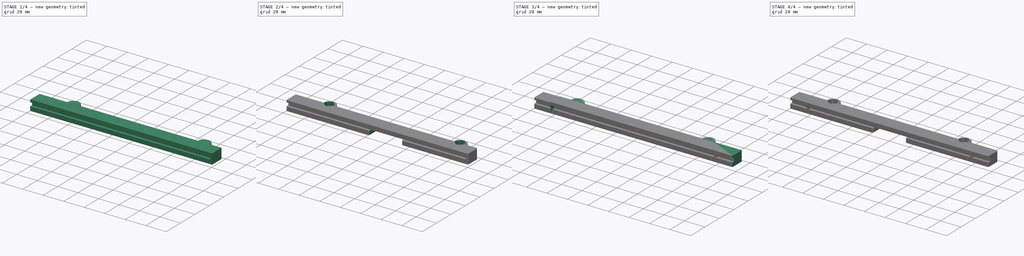
[diagram: build sequence overview — one tinted view per stage of 4, left to right]
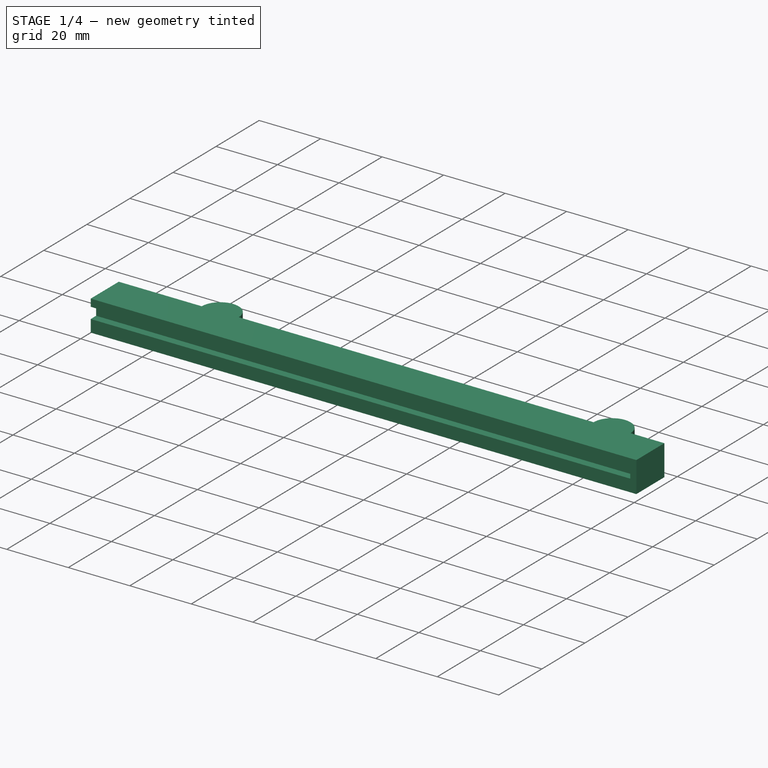
[diagram: stage 1 of 4 — iso view after this stage's code; geometry added in this stage tinted green]
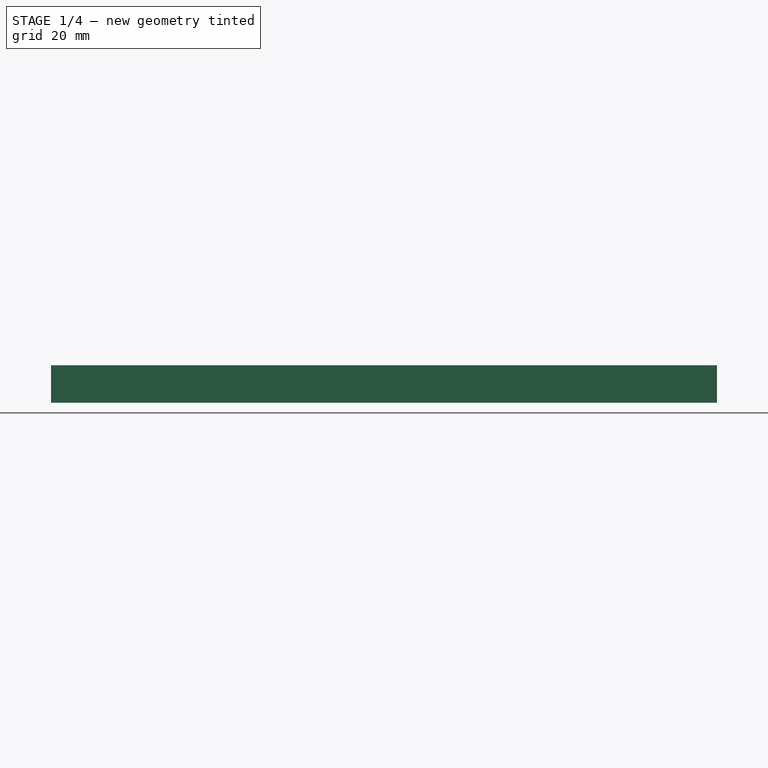
[diagram: stage 1 of 4 — front view after this stage's code; geometry added in this stage tinted green]
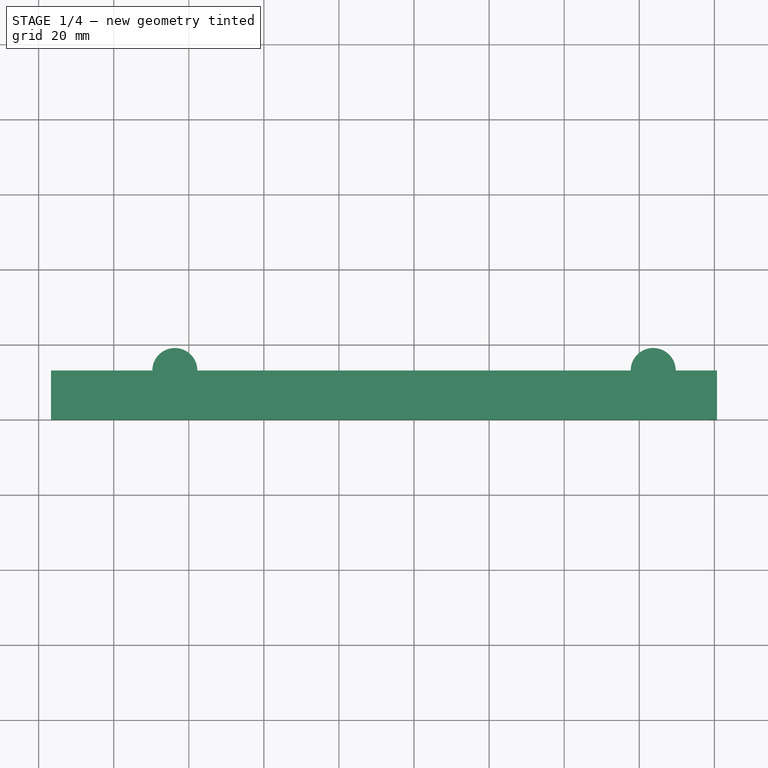
[diagram: stage 1 of 4 — top view after this stage's code; geometry added in this stage tinted green]
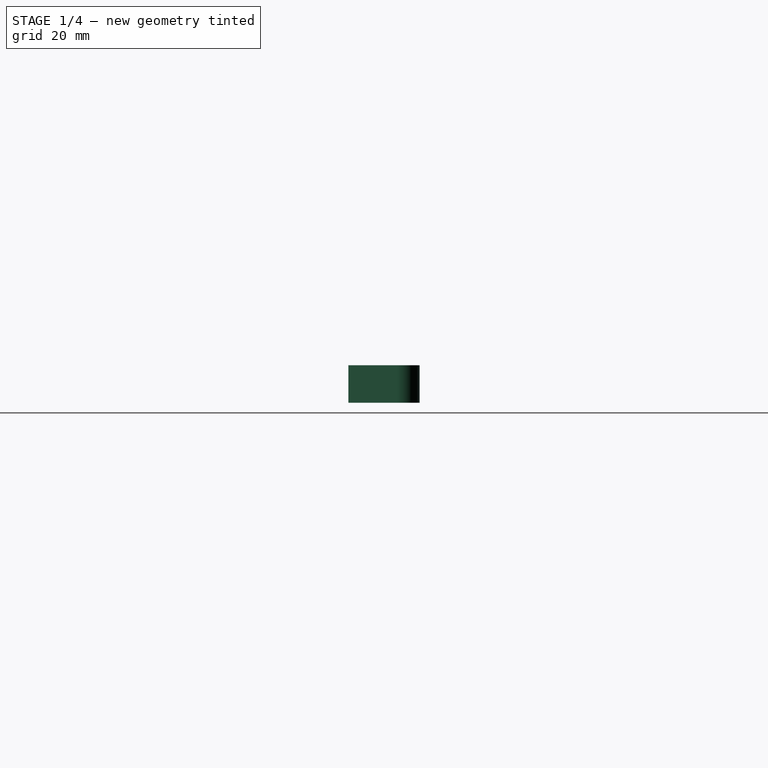
[diagram: stage 1 of 4 — right view after this stage's code; geometry added in this stage tinted green]
FCSTD DOCUMENT  (FreeCAD 1.1R38728 (Git))
Label: AuxPower1U PSRail
License: All rights reserved
LicenseURL: https://en.wikipedia.org/wiki/All_rights_reserved
objects: Sketcher::SketchObject×10, Part::Part2DObjectPython×10, PartDesign::Pocket×8, PartDesign::Pad×4, PartDesign::Chamfer×2, PartDesign::Body×2
note: 74 computed .brp shape members not serialized (recipe doc carries the construction recipe); baked Part::Feature solids carry a one-line shape summary decoded from their .brp

FEATURE [Part::Part2DObjectPython] Clone2D005  label="KeyedHoleRSketch"  # Draft 2D object (typed FeaturePython)
  Fuse = false
  Objects = -> [Sketch017]
  Scale = (1,1,1)
FEATURE [Part::Part2DObjectPython] Clone2D006  label="RoundHoleRSketch"  # Draft 2D object (typed FeaturePython)
  Fuse = false
  Objects = -> [Sketch020]
  Scale = (1,1,1)
FEATURE [Part::Part2DObjectPython] Clone2D007  label="BodyRSketch"  # Draft 2D object (typed FeaturePython)
  Fuse = false
  Objects = -> [Sketch021]
  Scale = (1,1,1)
FEATURE [Part::Part2DObjectPython] Clone2D008  label="StopRSketch"  # Draft 2D object (typed FeaturePython)
  Fuse = false
  Objects = -> [Sketch022]
  Scale = (1,1,1)
FEATURE [Part::Part2DObjectPython] Clone2D009  label="EdgeRSketch"  # Draft 2D object (typed FeaturePython)
  Fuse = false
  Objects = -> [Sketch024]
  Placement = pos=(0,0,0) rot=(1,0,0;1.5708rad)
  Scale = (1,1,1)
FEATURE [PartDesign::Pad] Pad002  label="BodyR"
  Direction = (0,0,1)
  Length = 10
  Length2 = 10
  Profile = -> Clone2D007
  ReferenceAxis = -> Clone2D007 [N_Axis]
  Refine = true
  Suppressed = false
  Type = 0
FEATURE [PartDesign::Pocket] Pocket003  label="EdgeR"
  BaseFeature = -> Pad002
  Direction = (0,1,2e-16)
  Length = 2.5
  Length2 = 5
  Profile = -> Clone2D009
  ReferenceAxis = -> Clone2D009 [N_Axis]
  Refine = true
  Suppressed = false
  Type = 0
FEATURE [PartDesign::Pad] Pad003  label="StopR"
  BaseFeature = -> Pocket003
  Direction = (0,0,1)
  Length = 10
  Length2 = 10
  Profile = -> Clone2D008
  ReferenceAxis = -> Clone2D008 [N_Axis]
  Refine = true
  Suppressed = false
  Type = 0
FEATURE [PartDesign::Pocket] Pocket004  label="RoundHoleR"
  BaseFeature = -> Pad003
  Direction = (0,0,-1)
  Length = 2
  Length2 = 5
  Profile = -> Clone2D006
  ReferenceAxis = -> Clone2D006 [N_Axis]
  Refine = true
  Reversed = true
  Suppressed = false
  Type = 0
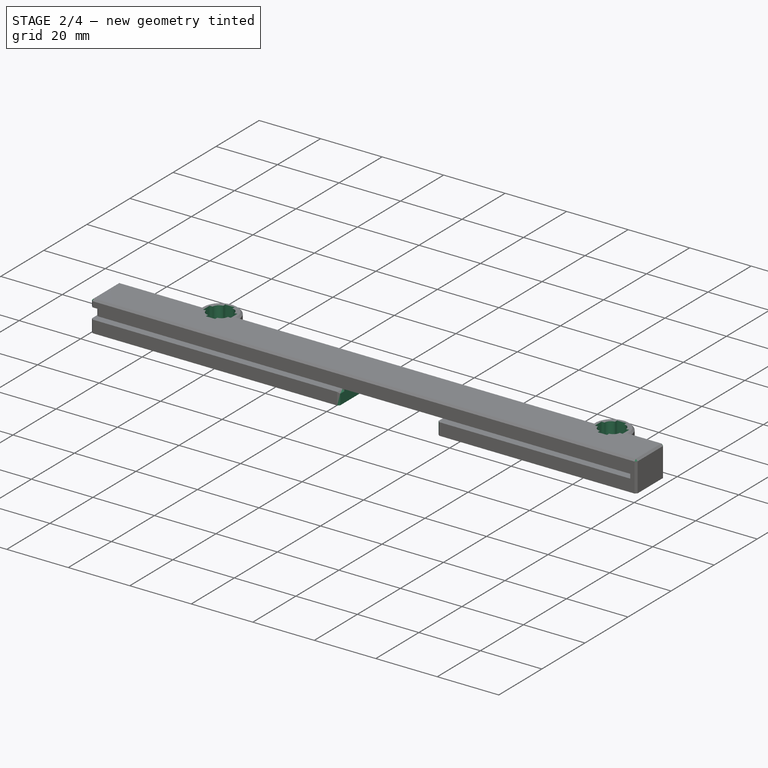
[diagram: stage 2 of 4 — iso view after this stage's code; geometry added in this stage tinted green]
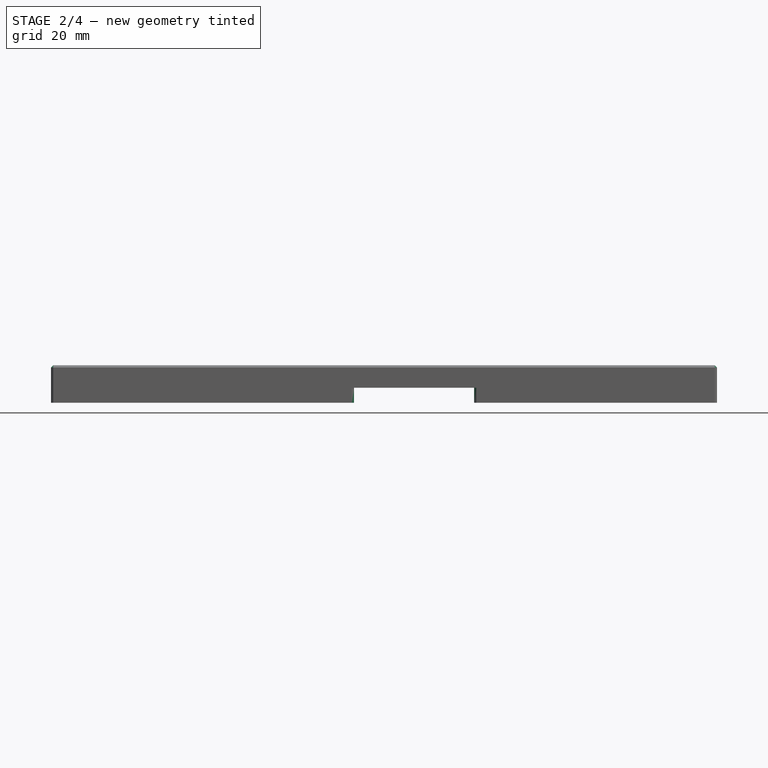
[diagram: stage 2 of 4 — front view after this stage's code; geometry added in this stage tinted green]
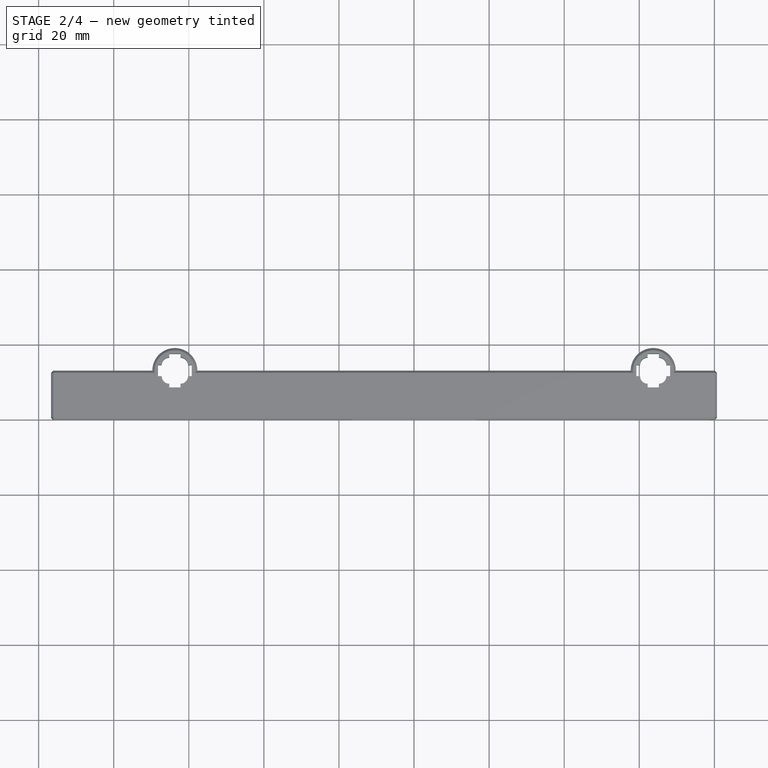
[diagram: stage 2 of 4 — top view after this stage's code; geometry added in this stage tinted green]
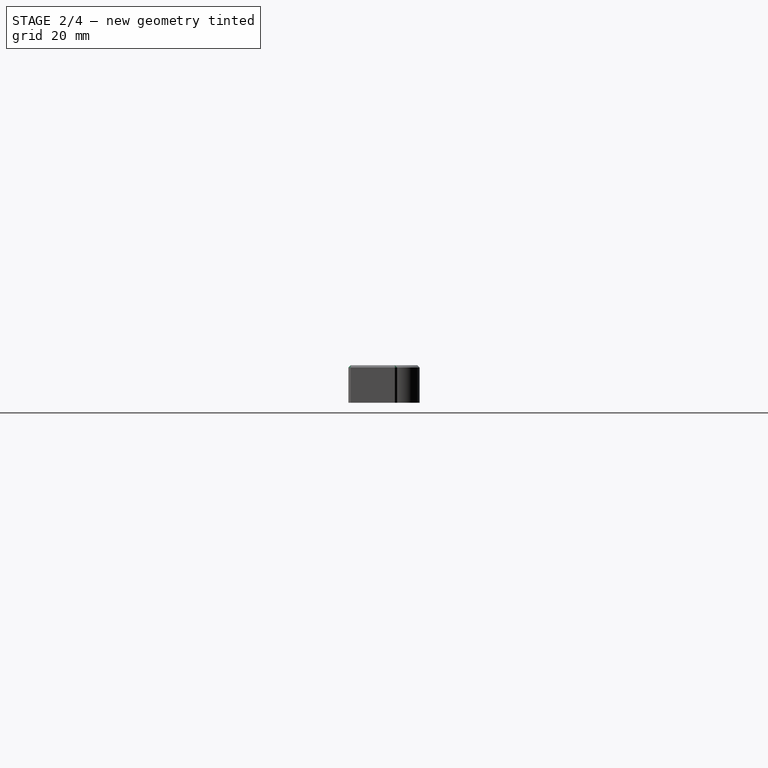
[diagram: stage 2 of 4 — right view after this stage's code; geometry added in this stage tinted green]
FEATURE [PartDesign::Pocket] Pocket005  label="KeyedHoleR"
  BaseFeature = -> Pocket004
  Direction = (0,0,-1)
  Length = 5
  Length2 = 5
  Profile = -> Clone2D005
  ReferenceAxis = -> Clone2D005 [N_Axis]
  Refine = true
  Reversed = true
  Suppressed = false
  Type = 1
FEATURE [PartDesign::Body] Body  label="RailL"
  AllowCompound = false
  Group = -> [Pad,Pocket,Pad001,Clone2D004,Clone2D003,Clone2D002,Clone2D001,Pocket001,Clone2D,Pocket002,Sketch025,Pocket006,Chamfer]
  Origin = -> Origin
  Placement = pos=(0,10,0) rot=(0,0,1;0rad)
  Tip = -> Chamfer
FEATURE [Sketcher::SketchObject] Sketch026  label="WirePassageRSketch"
  ArcFitTolerance = 1e-06
  AttachmentSupport = -> [XY_Plane001]
  ExternalGeometry = -> [Pocket005]
  FullyConstrained = true
  MakeInternals = false
  MapMode = 5
  sketch-geometry (6):
    g0: LineSegment StartX=-16 StartY=13 StartZ=0 EndX=-16 EndY=0 EndZ=0
    g1: LineSegment StartX=-16 StartY=0 StartZ=0 EndX=16 EndY=0 EndZ=0
    g2: LineSegment StartX=16 StartY=0 StartZ=0 EndX=16 EndY=13 EndZ=0
    g3: LineSegment StartX=16 StartY=13 StartZ=0 EndX=-16 EndY=13 EndZ=0
    g4: LineSegment [constr] StartX=-57.7159 StartY=13 StartZ=0 EndX=-16 EndY=13 EndZ=0
    g5: LineSegment [constr] StartX=16 StartY=13 StartZ=0 EndX=57.7159 EndY=13 EndZ=0
  constraints (16):
    c: Coincident(g0,g1)
    c: Coincident(g1,g2)
    c: Coincident(g2,g3)
    c: Coincident(g3,g0)
    c: Vertical(g0)
    c: Vertical(g2)
    c: Horizontal(g1)
    c: Horizontal(g3)
    c: Distance(g0,g2) = 32
    c: Coincident(g4,g-4)
    c: Coincident(g4,g0)
    c: Coincident(g5,g2)
    c: Coincident(g5,g-4)
    c: Equal(g4,g5)
    c: Horizontal(g0,g4)
    c: Horizontal(g0,g-3)
FEATURE [PartDesign::Pocket] Pocket007  label="WirePassagRPocket"
  BaseFeature = -> Pocket005
  Direction = (0,0,-1)
  Length = 4
  Length2 = 5
  Profile = -> Sketch026
  ReferenceAxis = -> Sketch026 [N_Axis]
  Refine = true
  Reversed = true
  Suppressed = false
  Type = 0
FEATURE [PartDesign::Chamfer] Chamfer001  label="ChamferR"
  Angle = 45
  Base = -> Pocket007 [Edge62,Edge57,Edge64,Edge56,Edge19,Edge21,Edge78,Edge80,Edge74,Edge77,Edge23,Edge22,Edge14,Edge20,Edge10,Edge9,Edge11,Edge4,Edge5,Edge6]
  BaseFeature = -> Pocket007
  ChamferType = 0
  FlipDirection = false
  Refine = true
  Size = 0.6
  Size2 = 1
  SupportTransform = false
  Suppressed = false
  UseAllEdges = false
FEATURE [PartDesign::Body] Body001  label="RailR"
  AllowCompound = false
  Group = -> [Clone2D007,Pad002,Clone2D009,Pocket003,Clone2D008,Pad003,Clone2D006,Pocket004,Clone2D005,Pocket005,Sketch026,Pocket007,Chamfer001]
  Origin = -> Origin001
  Placement = pos=(0,-10,0) rot=(0,0,1;3.14159rad)
  Tip = -> Chamfer001
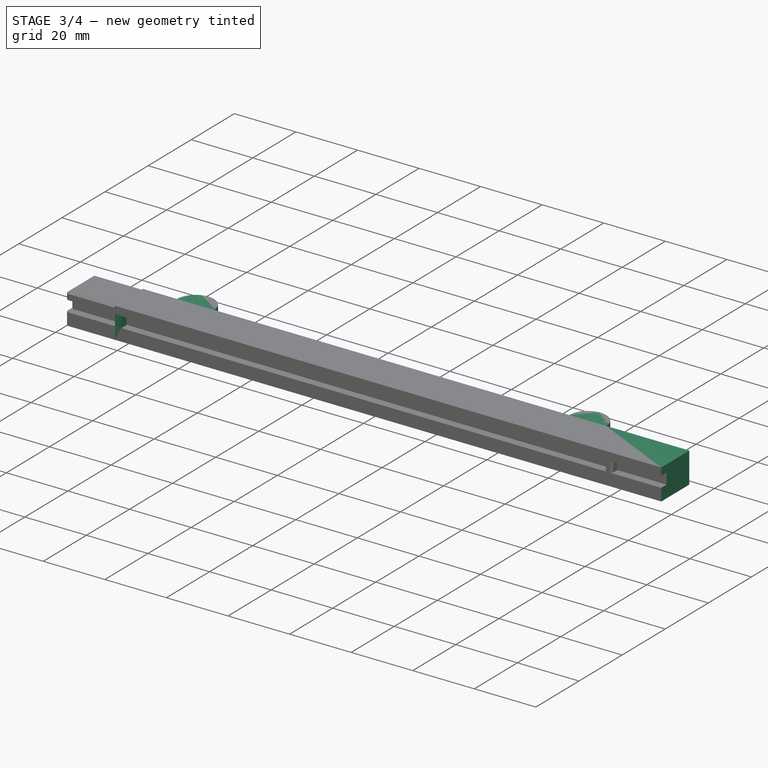
[diagram: stage 3 of 4 — iso view after this stage's code; geometry added in this stage tinted green]
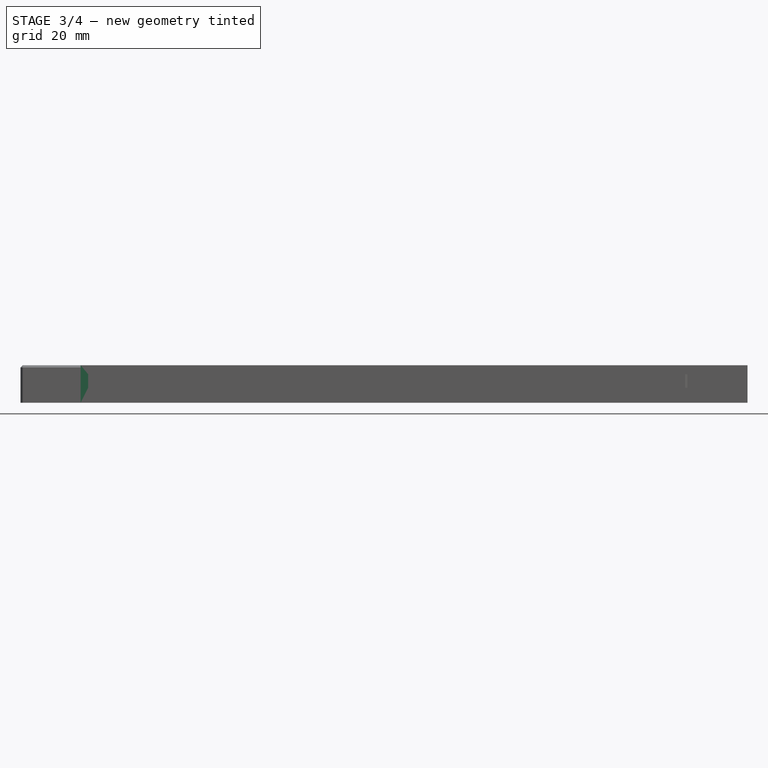
[diagram: stage 3 of 4 — front view after this stage's code; geometry added in this stage tinted green]
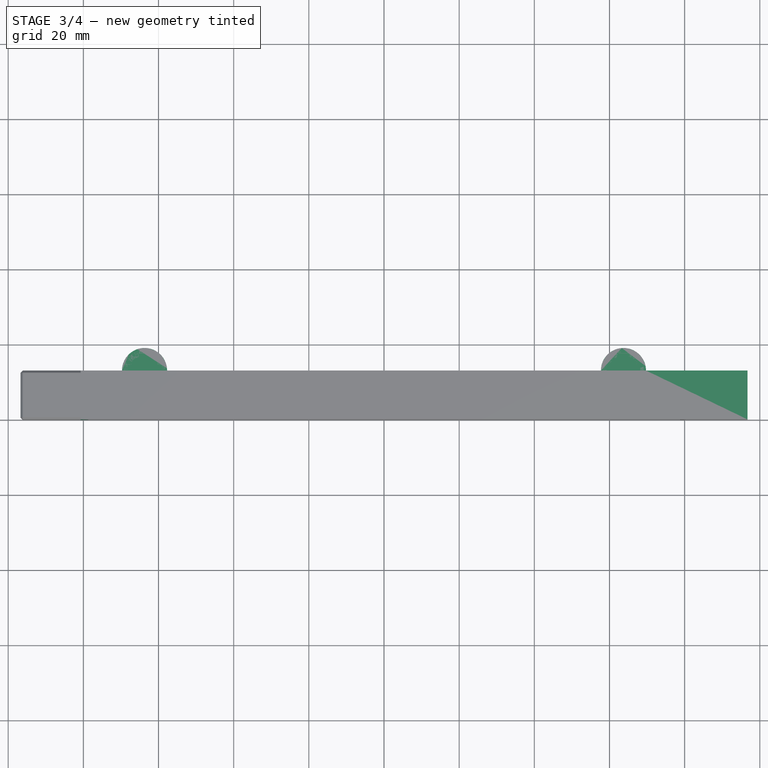
[diagram: stage 3 of 4 — top view after this stage's code; geometry added in this stage tinted green]
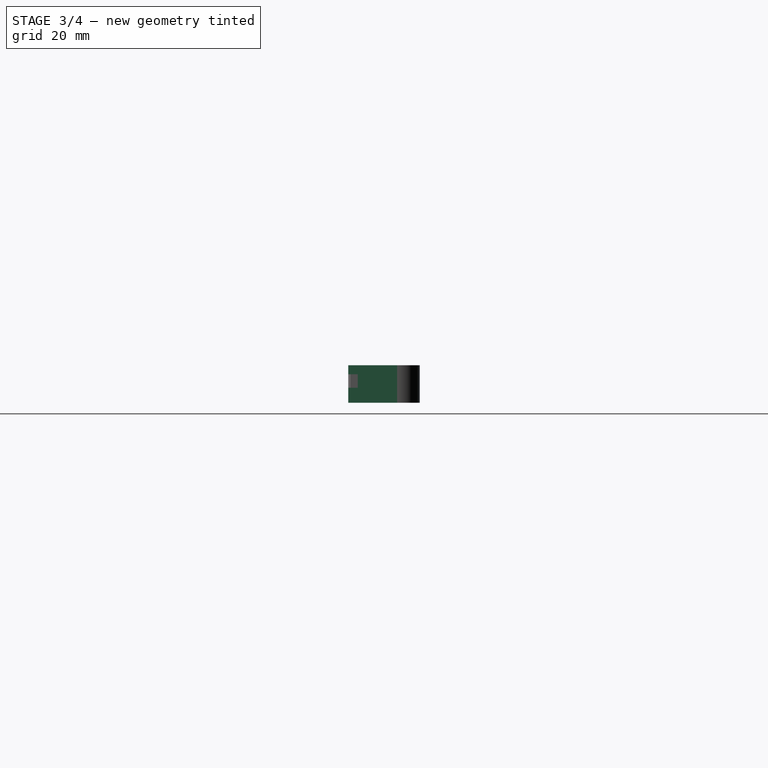
[diagram: stage 3 of 4 — right view after this stage's code; geometry added in this stage tinted green]
FEATURE [Sketcher::SketchObject] Sketch020  label="RoundHoleMasterSketch"
  ArcFitTolerance = 1e-06
  FullyConstrained = true
  MakeInternals = false
  MapMode = 5
  sketch-geometry (5):
    g0: LineSegment [constr] StartX=-63.7159 StartY=0 StartZ=0 EndX=-63.7159 EndY=13 EndZ=0
    g1: LineSegment [constr] StartX=-63.7159 StartY=0 StartZ=0 EndX=63.7159 EndY=0 EndZ=0
    g2: LineSegment [constr] StartX=63.7159 StartY=0 StartZ=0 EndX=63.7159 EndY=13 EndZ=0
    g3: Circle CenterX=-63.7159 CenterY=13 CenterZ=0 NormalX=0 NormalY=0 NormalZ=1 AngleXU=0 Radius=5
    g4: Circle CenterX=63.7159 CenterY=13 CenterZ=0 NormalX=0 NormalY=0 NormalZ=1 AngleXU=0 Radius=5
  constraints (13):
    c: Distance(g0) = 13
    c: Vertical(g0)
    c: Coincident(g1,g0)
    c: Horizontal(g1)
    c: DistanceX(g1,g1) = 127.432
    c: Symmetric(g1,g0,g-1)
    c: Coincident(g2,g1)
    c: Vertical(g2)
    c: Equal(g2,g0)
    c: Diameter(g3) = 10
    c: Coincident(g3,g0)
    c: Coincident(g4,g2)
    c: Equal(g4,g3)
FEATURE [Sketcher::SketchObject] Sketch017  label="KeyedHoleMasterSketch"
  ArcFitTolerance = 1e-06
  ExternalGeometry = -> [Sketch020]
  FullyConstrained = true
  MakeInternals = false
  MapMode = 2
  sketch-geometry (48):
    g0: LineSegment [constr] StartX=-63.7159 StartY=13 StartZ=0 EndX=-63.7159 EndY=17.5 EndZ=0
    g1: LineSegment [constr] StartX=-63.7159 StartY=13 StartZ=0 EndX=-68.2159 EndY=13 EndZ=0
    g2: LineSegment [constr] StartX=-63.7159 StartY=13 StartZ=0 EndX=-63.7159 EndY=8.5 EndZ=0
    g3: LineSegment [constr] StartX=-63.7159 StartY=13 StartZ=0 EndX=-59.2159 EndY=13 EndZ=0
    g4: LineSegment StartX=-68.2159 StartY=13 StartZ=0 EndX=-68.2159 EndY=14.5 EndZ=0
    g5: LineSegment StartX=-68.2159 StartY=13 StartZ=0 EndX=-68.2159 EndY=11.5 EndZ=0
    g6: LineSegment StartX=-59.2159 StartY=13 StartZ=0 EndX=-59.2159 EndY=11.5 EndZ=0
    g7: LineSegment StartX=-59.2159 StartY=13 StartZ=0 EndX=-59.2159 EndY=14.5 EndZ=0
    g8: LineSegment StartX=-63.7159 StartY=17.5 StartZ=0 EndX=-65.2159 EndY=17.5 EndZ=0
    g9: LineSegment StartX=-63.7159 StartY=17.5 StartZ=0 EndX=-62.2159 EndY=17.5 EndZ=0
    g10: LineSegment StartX=-65.2159 StartY=17.5 StartZ=0 EndX=-65.2159 EndY=16.5 EndZ=0
    g11: LineSegment StartX=-68.2159 StartY=14.5 StartZ=0 EndX=-67.2159 EndY=14.5 EndZ=0
    g12: LineSegment StartX=-68.2159 StartY=11.5 StartZ=0 EndX=-67.2159 EndY=11.5 EndZ=0
    g13: LineSegment StartX=-65.2159 StartY=8.5 StartZ=0 EndX=-65.2159 EndY=9.5 EndZ=0
    g14: LineSegment StartX=-62.2159 StartY=8.5 StartZ=0 EndX=-62.2159 EndY=9.5 EndZ=0
    g15: LineSegment StartX=-59.2159 StartY=11.5 StartZ=0 EndX=-60.2159 EndY=11.5 EndZ=0
    g16: LineSegment StartX=-59.2159 StartY=14.5 StartZ=0 EndX=-60.2159 EndY=14.5 EndZ=0
    g17: LineSegment StartX=-62.2159 StartY=17.5 StartZ=0 EndX=-62.2159 EndY=16.5 EndZ=0
    g18: ArcOfCircle CenterX=-65.2159 CenterY=14.5 CenterZ=0 NormalX=0 NormalY=0 NormalZ=1 AngleXU=0 Radius=2 StartAngle=1.5708 EndAngle=3.14159
    g19: ArcOfCircle CenterX=-62.2159 CenterY=14.5 CenterZ=0 NormalX=0 NormalY=0 NormalZ=1 AngleXU=0 Radius=2 StartAngle=-9e-16 EndAngle=1.5708
    g20: ArcOfCircle CenterX=-62.2159 CenterY=11.5 CenterZ=0 NormalX=0 NormalY=0 NormalZ=1 AngleXU=0 Radius=2 StartAngle=4.71239 EndAngle=6.28319
    g21: ArcOfCircle CenterX=-65.2159 CenterY=11.5 CenterZ=0 NormalX=0 NormalY=0 NormalZ=1 AngleXU=0 Radius=2 StartAngle=3.14159 EndAngle=4.71239
    g22: LineSegment [constr] StartX=63.7159 StartY=13 StartZ=0 EndX=59.2159 EndY=13 EndZ=0
    g23: LineSegment [constr] StartX=63.7159 StartY=13 StartZ=0 EndX=68.2159 EndY=13 EndZ=0
    g24: LineSegment [constr] StartX=63.7159 StartY=13 StartZ=0 EndX=63.7159 EndY=17.5 EndZ=0
    g25: LineSegment [constr] StartX=63.7159 StartY=13 StartZ=0 EndX=63.7159 EndY=8.5 EndZ=0
    g26: LineSegment StartX=-63.7159 StartY=8.5 StartZ=0 EndX=-65.2159 EndY=8.5 EndZ=0
    g27: LineSegment StartX=-63.7159 StartY=8.5 StartZ=0 EndX=-62.2159 EndY=8.5 EndZ=0
    g28: LineSegment StartX=63.7159 StartY=17.5 StartZ=0 EndX=62.2159 EndY=17.5 EndZ=0
    g29: LineSegment StartX=62.2159 StartY=17.5 StartZ=0 EndX=62.2159 EndY=16.5 EndZ=0
    g30: LineSegment StartX=63.7159 StartY=17.5 StartZ=0 EndX=65.2159 EndY=17.5 EndZ=0
    g31: LineSegment StartX=68.2159 StartY=13 StartZ=0 EndX=68.2159 EndY=14.5 EndZ=0
    g32: LineSegment StartX=68.2159 StartY=13 StartZ=0 EndX=68.2159 EndY=11.5 EndZ=0
    g33: LineSegment StartX=63.7159 StartY=8.5 StartZ=0 EndX=65.2159 EndY=8.5 EndZ=0
    g34: LineSegment StartX=63.7159 StartY=8.5 StartZ=0 EndX=62.2159 EndY=8.5 EndZ=0
    g35: LineSegment StartX=59.2159 StartY=13 StartZ=0 EndX=59.2159 EndY=11.5 EndZ=0
    g36: LineSegment StartX=59.2159 StartY=13 StartZ=0 EndX=59.2159 EndY=14.5 EndZ=0
    g37: LineSegment StartX=59.2159 StartY=14.5 StartZ=0 EndX=60.2159 EndY=14.5 EndZ=0
    g38: LineSegment StartX=59.2159 StartY=11.5 StartZ=0 EndX=60.2159 EndY=11.5 EndZ=0
    g39: LineSegment StartX=62.2159 StartY=8.5 StartZ=0 EndX=62.2159 EndY=9.5 EndZ=0
    g40: LineSegment StartX=65.2159 StartY=8.5 StartZ=0 EndX=65.2159 EndY=9.5 EndZ=0
    g41: LineSegment StartX=68.2159 StartY=11.5 StartZ=0 EndX=67.2159 EndY=11.5 EndZ=0
    g42: LineSegment StartX=68.2159 StartY=14.5 StartZ=0 EndX=67.2159 EndY=14.5 EndZ=0
    g43: LineSegment StartX=65.2159 StartY=17.5 StartZ=0 EndX=65.2159 EndY=16.5 EndZ=0
    g44: ArcOfCircle CenterX=62.2159 CenterY=14.5 CenterZ=0 NormalX=0 NormalY=0 NormalZ=1 AngleXU=0 Radius=2 StartAngle=1.5708 EndAngle=3.14159
    g45: ArcOfCircle CenterX=65.2159 CenterY=14.5 CenterZ=0 NormalX=0 NormalY=0 NormalZ=1 AngleXU=0 Radius=2 StartAngle=0 EndAngle=1.5708
    g46: ArcOfCircle CenterX=65.2159 CenterY=11.5 CenterZ=0 NormalX=0 NormalY=0 NormalZ=1 AngleXU=0 Radius=2 StartAngle=4.71239 EndAngle=6.28319
    g47: ArcOfCircle CenterX=62.2159 CenterY=11.5 CenterZ=0 NormalX=0 NormalY=0 NormalZ=1 AngleXU=0 Radius=2 StartAngle=3.14159 EndAngle=4.71239
  constraints (145):
    c: Horizontal(g3)
    c: Vertical(g0)
    c: Vertical(g2)
    c: Coincident(g1,g0)
    c: Coincident(g2,g0)
    c: Coincident(g0,g3)
    c: DistanceX(g1,g1) = 4.5  'Radius'
    c: Distance(g4) = 1.5
    c: Coincident(g4,g1)
    c: Vertical(g4)
    c: Coincident(g5,g1)
    c: Vertical(g5)
    c: Equal(g0,g1)
    c: Equal(g3,g0)
    c: Equal(g2,g3)
    c: Equal(g5,g4)
    c: Coincident(g6,g3)
    c: Vertical(g6)
    c: Equal(g6,g4)
    c: Coincident(g7,g3)
    c: Vertical(g7)
    c: Equal(g7,g6)
    c: Coincident(g8,g0)
    c: Horizontal(g8)
    c: Equal(g8,g4)
    c: Coincident(g9,g0)
    c: Horizontal(g9)
    c: Equal(g8,g9)
    c: Distance(g10) = 1
    c: Coincident(g10,g8)
    c: Vertical(g10)
    c: Coincident(g11,g4)
    c: Horizontal(g11)
    c: Coincident(g12,g5)
    c: Horizontal(g12)
    c: Vertical(g13)
    c: Vertical(g14)
    c: Coincident(g15,g6)
    c: Horizontal(g15)
    c: Coincident(g16,g7)
    c: Horizontal(g16)
    c: Coincident(g17,g9)
    c: Vertical(g17)
    c: Equal(g10,g17)
    c: Equal(g16,g17)
    c: Equal(g16,g15)
    c: Equal(g14,g15)
    c: Equal(g14,g13)
    c: Equal(g13,g12)
    c: Equal(g11,g12)
    c: Coincident(g19,g17)
    c: Coincident(g19,g16)
    c: Coincident(g18,g10)
    c: Coincident(g18,g11)
    c: Coincident(g20,g15)
    c: Coincident(g20,g14)
    c: Coincident(g21,g12)
    c: Coincident(g21,g13)
    c: Horizontal(g22)
    c: Horizontal(g23)
    c: Vertical(g24)
    c: Equal(g25,g23)
    c: Equal(g23,g22)
    c: Equal(g22,g24)
    c: Equal(g24,g3)
    c: Coincident(g0,g-3)
    c: Coincident(g22,g24)
    c: Coincident(g22,g23)
    c: Coincident(g22,g25)
    c: Vertical(g25)
    c: Coincident(g22,g-4)
    c: Coincident(g26,g2)
    c: Horizontal(g26)
    c: Coincident(g27,g2)
    c: Horizontal(g27)
    c: Equal(g27,g26)
    c: Equal(g26,g4)
    c: Vertical(g26,g13)
    c: Coincident(g14,g27)
    c: Vertical(g18,g10)
    c: Vertical(g21,g18)
    c: Vertical(g20,g14)
    c: Vertical(g19,g20)
    c: Horizontal(g12,g21)
    c: Horizontal(g1)
    c: Distance(g28) = 1.5
    c: Coincident(g28,g24)
    c: Horizontal(g28)
    c: Coincident(g29,g28)
    c: Vertical(g29)
    c: DistanceY(g29,g29) = 1
    c: Coincident(g30,g24)
    c: Horizontal(g30)
    c: Coincident(g31,g23)
    c: Vertical(g31)
    c: Coincident(g32,g23)
    c: Vertical(g32)
    c: Coincident(g33,g25)
    c: Horizontal(g33)
    c: Coincident(g34,g25)
    c: Horizontal(g34)
    c: Coincident(g35,g22)
    c: Vertical(g35)
    c: Coincident(g36,g22)
    c: Vertical(g36)
    c: Equal(g36,g35)
    c: Equal(g35,g34)
    c: Equal(g34,g33)
    c: Equal(g33,g32)
    c: Equal(g32,g31)
    c: Equal(g31,g30)
    c: Equal(g30,g28)
    c: Coincident(g37,g36)
    c: Horizontal(g37)
    c: Coincident(g38,g35)
    c: Horizontal(g38)
    c: Coincident(g39,g34)
    c: Vertical(g39)
    c: Coincident(g40,g33)
    c: Vertical(g40)
    c: Coincident(g41,g32)
    c: Horizontal(g41)
    c: Coincident(g42,g31)
    c: Horizontal(g42)
    c: Coincident(g43,g30)
    c: Vertical(g43)
    c: Equal(g43,g42)
    c: Equal(g42,g41)
    c: Equal(g41,g38)
    c: Equal(g38,g37)
    c: Equal(g37,g29)
    c: Equal(g29,g40)
    c: Equal(g40,g39)
    c: Coincident(g44,g37)
    c: Coincident(g44,g29)
    c: Coincident(g45,g43)
    c: Coincident(g45,g42)
    c: Coincident(g46,g41)
    c: Coincident(g46,g40)
    c: Coincident(g47,g38)
    c: Coincident(g47,g39)
    c: Horizontal(g47,g38)
    c: Horizontal(g46,g41)
    c: Horizontal(g45,g42)
    c: Horizontal(g44,g37)
FEATURE [Sketcher::SketchObject] Sketch016  label="BodyLMasterSketch"
  ArcFitTolerance = 1e-06
  ExternalGeometry = -> [Sketch020]
  FullyConstrained = true
  MakeInternals = false
  MapMode = 5
  sketch-geometry (10):
    g0: LineSegment [constr] StartX=-69.7159 StartY=13 StartZ=0 EndX=-57.7159 EndY=13 EndZ=0
    g1: ArcOfCircle CenterX=-63.7159 CenterY=13 CenterZ=0 NormalX=0 NormalY=0 NormalZ=1 AngleXU=0 Radius=6 StartAngle=0 EndAngle=3.14159
    g2: LineSegment StartX=-69.7159 StartY=13 StartZ=0 EndX=-78.7159 EndY=13 EndZ=0
    g3: LineSegment StartX=-78.7159 StartY=13 StartZ=0 EndX=-78.7159 EndY=0 EndZ=0
    g4: LineSegment [constr] StartX=57.7159 StartY=13 StartZ=0 EndX=69.7159 EndY=13 EndZ=0
    g5: ArcOfCircle CenterX=63.7159 CenterY=13 CenterZ=0 NormalX=0 NormalY=0 NormalZ=1 AngleXU=0 Radius=6 StartAngle=7e-16 EndAngle=3.14159
    g6: LineSegment StartX=69.7159 StartY=13 StartZ=0 EndX=96.7159 EndY=13 EndZ=0
    g7: LineSegment StartX=96.7159 StartY=13 StartZ=0 EndX=96.7159 EndY=0 EndZ=0
    g8: LineSegment StartX=57.7159 StartY=13 StartZ=0 EndX=-57.7159 EndY=13 EndZ=0
    g9: LineSegment StartX=-78.7159 StartY=0 StartZ=0 EndX=96.7159 EndY=0 EndZ=0
  constraints (28):
    c: Horizontal(g0)
    c: Symmetric(g0,g0,g-3)
    c: DistanceX(g0,g0) = 12
    c: Coincident(g0,g1)
    c: Coincident(g1,g0)
    c: Horizontal(g-3,g1)
    c: Distance(g2) = 9
    c: Coincident(g2,g0)
    c: Horizontal(g2)
    c: Coincident(g3,g2)
    c: PointOnObject(g3,g-1)
    c: Vertical(g3)
    c: Horizontal(g4)
    c: Symmetric(g4,g4,g-4)
    c: DistanceX(g4,g4) = 12
    c: Coincident(g5,g-4)
    c: Coincident(g4,g5)
    c: Vertical(g5,g4)
    c: Distance(g6) = 27
    c: Coincident(g6,g4)
    c: Horizontal(g6)
    c: Coincident(g7,g6)
    c: PointOnObject(g7,g-1)
    c: Vertical(g7)
    c: Coincident(g8,g5)
    c: Coincident(g8,g0)
    c: Coincident(g9,g3)
    c: Coincident(g9,g7)
FEATURE [Sketcher::SketchObject] Sketch  label="StopLMasterSketch"
  ArcFitTolerance = 1e-06
  ExternalGeometry = -> [Sketch016]
  FullyConstrained = true
  MakeInternals = false
  MapMode = 5
  sketch-geometry (4):
    g0: LineSegment StartX=-78.7159 StartY=0 StartZ=0 EndX=-78.7159 EndY=13 EndZ=0
    g1: LineSegment StartX=-78.7159 StartY=13 StartZ=0 EndX=-80.7159 EndY=13 EndZ=0
    g2: LineSegment StartX=-80.7159 StartY=13 StartZ=0 EndX=-80.7159 EndY=0 EndZ=0
    g3: LineSegment StartX=-80.7159 StartY=0 StartZ=0 EndX=-78.7159 EndY=0 EndZ=0
  constraints (11):
    c: Coincident(g0,g1)
    c: Coincident(g1,g2)
    c: Coincident(g2,g3)
    c: Coincident(g3,g0)
    c: Vertical(g0)
    c: Vertical(g2)
    c: Horizontal(g1)
    c: Horizontal(g3)
    c: Distance(g0,g2) = 2
    c: Coincident(g0,g-3)
    c: Horizontal(g-3,g1)
FEATURE [Sketcher::SketchObject] Sketch021  label="BodyRMasterSketch"
  ArcFitTolerance = 1e-06
  ExternalGeometry = -> [Sketch020]
  FullyConstrained = true
  MakeInternals = false
  MapMode = 5
  sketch-geometry (10):
    g0: LineSegment [constr] StartX=57.7159 StartY=13 StartZ=0 EndX=69.7159 EndY=13 EndZ=0
    g1: LineSegment [constr] StartX=-69.7159 StartY=13 StartZ=0 EndX=-57.7159 EndY=13 EndZ=0
    g2: LineSegment StartX=-69.7159 StartY=13 StartZ=0 EndX=-96.7159 EndY=13 EndZ=0
    g3: LineSegment StartX=-96.7159 StartY=13 StartZ=0 EndX=-96.7159 EndY=0 EndZ=0
    g4: LineSegment StartX=57.7159 StartY=13 StartZ=0 EndX=-57.7159 EndY=13 EndZ=0
    g5: LineSegment StartX=69.7159 StartY=13 StartZ=0 EndX=78.7159 EndY=13 EndZ=0
    g6: LineSegment StartX=78.7159 StartY=13 StartZ=0 EndX=78.7159 EndY=0 EndZ=0
    g7: LineSegment StartX=78.7159 StartY=0 StartZ=0 EndX=-96.7159 EndY=0 EndZ=0
    g8: ArcOfCircle CenterX=-63.7159 CenterY=13 CenterZ=0 NormalX=0 NormalY=0 NormalZ=1 AngleXU=0 Radius=6 StartAngle=0 EndAngle=3.14159
    g9: ArcOfCircle CenterX=63.7159 CenterY=13 CenterZ=0 NormalX=0 NormalY=0 NormalZ=1 AngleXU=0 Radius=6 StartAngle=-6.457e-13 EndAngle=3.14159
  constraints (28):
    c: Horizontal(g0)
    c: Symmetric(g0,g0,g-4)
    c: DistanceX(g0,g0) = 12
    c: Horizontal(g1)
    c: DistanceX(g1,g1) = 12
    c: Symmetric(g1,g1,g-3)
    c: Distance(g2) = 27
    c: Coincident(g2,g1)
    c: Horizontal(g2)
    c: Coincident(g3,g2)
    c: PointOnObject(g3,g-1)
    c: Vertical(g3)
    c: Coincident(g4,g0)
    c: Coincident(g4,g1)
    c: Distance(g5) = 9
    c: Coincident(g5,g0)
    c: Horizontal(g5)
    c: Coincident(g6,g5)
    c: PointOnObject(g6,g-1)
    c: Vertical(g6)
    c: Coincident(g7,g6)
    c: Coincident(g7,g3)
    c: Coincident(g1,g8)
    c: Coincident(g1,g8)
    c: Horizontal(g8,g-3)
    c: Coincident(g9,g0)
    c: Coincident(g0,g9)
    c: Horizontal(g9,g-4)
FEATURE [Sketcher::SketchObject] Sketch022  label="StopRMasterSketch"
  ArcFitTolerance = 1e-06
  ExternalGeometry = -> [Sketch021]
  FullyConstrained = true
  MakeInternals = false
  MapMode = 5
  sketch-geometry (4):
    g0: LineSegment StartX=78.7159 StartY=0 StartZ=0 EndX=80.7159 EndY=0 EndZ=0
    g1: LineSegment StartX=80.7159 StartY=0 StartZ=0 EndX=80.7159 EndY=13 EndZ=0
    g2: LineSegment StartX=80.7159 StartY=13 StartZ=0 EndX=78.7159 EndY=13 EndZ=0
    g3: LineSegment StartX=78.7159 StartY=13 StartZ=0 EndX=78.7159 EndY=0 EndZ=0
  constraints (11):
    c: Coincident(g0,g1)
    c: Coincident(g1,g2)
    c: Coincident(g2,g3)
    c: Coincident(g3,g0)
    c: Horizontal(g0)
    c: Horizontal(g2)
    c: Vertical(g1)
    c: Vertical(g3)
    c: Distance(g1,g3) = 2
    c: Coincident(g0,g-3)
    c: Horizontal(g1,g-3)
FEATURE [Sketcher::SketchObject] Sketch023  label="EdgeLMasterSketch"
  ArcFitTolerance = 1e-06
  ExternalGeometry = -> [Sketch016]
  FullyConstrained = true
  MakeInternals = false
  Placement = pos=(0,0,0) rot=(1,0,0;1.5708rad)
  sketch-geometry (6):
    g0: LineSegment [constr] StartX=-78.7159 StartY=0 StartZ=0 EndX=-78.7159 EndY=4 EndZ=0
    g1: LineSegment [constr] StartX=96.7159 StartY=0 StartZ=0 EndX=96.7159 EndY=4 EndZ=0
    g2: LineSegment StartX=-78.7159 StartY=4 StartZ=0 EndX=96.7159 EndY=4 EndZ=0
    g3: LineSegment StartX=96.7159 StartY=4 StartZ=0 EndX=96.7159 EndY=7.6 EndZ=0
    g4: LineSegment StartX=96.7159 StartY=7.6 StartZ=0 EndX=-78.7159 EndY=7.6 EndZ=0
    g5: LineSegment StartX=-78.7159 StartY=7.6 StartZ=0 EndX=-78.7159 EndY=4 EndZ=0
  constraints (17):
    c: Distance(g0) = 4
    c: Coincident(g0,g-3)
    c: Vertical(g0)
    c: Coincident(g1,g-3)
    c: Vertical(g1)
    c: Equal(g1,g0)
    c: Coincident(g2,g3)
    c: Coincident(g3,g4)
    c: Coincident(g4,g5)
    c: Coincident(g5,g2)
    c: Horizontal(g2)
    c: Horizontal(g4)
    c: Vertical(g3)
    c: Vertical(g5)
    c: Coincident(g2,g0)
    c: DistanceY(g5,g5) = 3.6
    c: Vertical(g3,g1)
FEATURE [Sketcher::SketchObject] Sketch024  label="EdgeRMasterSketch"
  ArcFitTolerance = 1e-06
  ExternalGeometry = -> [Sketch021]
  FullyConstrained = true
  MakeInternals = false
  Placement = pos=(0,0,0) rot=(1,0,0;1.5708rad)
  sketch-geometry (6):
    g0: LineSegment [constr] StartX=-96.7159 StartY=0 StartZ=0 EndX=-96.7159 EndY=4 EndZ=0
    g1: LineSegment [constr] StartX=78.7159 StartY=0 StartZ=0 EndX=78.7159 EndY=4 EndZ=0
    g2: LineSegment StartX=-96.7159 StartY=4 StartZ=0 EndX=78.7159 EndY=4 EndZ=0
    g3: LineSegment StartX=78.7159 StartY=4 StartZ=0 EndX=78.7159 EndY=7.6 EndZ=0
    g4: LineSegment StartX=78.7159 StartY=7.6 StartZ=0 EndX=-96.7159 EndY=7.6 EndZ=0
    g5: LineSegment StartX=-96.7159 StartY=7.6 StartZ=0 EndX=-96.7159 EndY=4 EndZ=0
  constraints (17):
    c: Distance(g0) = 4
    c: Coincident(g0,g-3)
    c: Vertical(g0)
    c: Coincident(g1,g-3)
    c: Vertical(g1)
    c: Equal(g1,g0)
    c: Coincident(g2,g3)
    c: Coincident(g3,g4)
    c: Coincident(g4,g5)
    c: Coincident(g5,g2)
    c: Horizontal(g2)
    c: Horizontal(g4)
    c: Vertical(g3)
    c: Vertical(g5)
    c: Coincident(g2,g0)
    c: Vertical(g3,g1)
    c: DistanceY(g5,g5) = 3.6
FEATURE [Part::Part2DObjectPython] Clone2D001  label="RoundHoleLSketch"  # Draft 2D object (typed FeaturePython)
  Fuse = false
  Objects = -> [Sketch020]
  Scale = (1,1,1)
FEATURE [Part::Part2DObjectPython] Clone2D002  label="BodyLSketch"  # Draft 2D object (typed FeaturePython)
  Fuse = false
  Objects = -> [Sketch016]
  Scale = (1,1,1)
FEATURE [Part::Part2DObjectPython] Clone2D003  label="StopLSketch"  # Draft 2D object (typed FeaturePython)
  Fuse = false
  Objects = -> [Sketch]
  Scale = (1,1,1)
FEATURE [Part::Part2DObjectPython] Clone2D004  label="EdgeLSketch"  # Draft 2D object (typed FeaturePython)
  Fuse = false
  Objects = -> [Sketch023]
  Placement = pos=(0,0,0) rot=(1,0,0;1.5708rad)
  Scale = (1,1,1)
FEATURE [PartDesign::Pad] Pad  label="BodyL"
  Direction = (0,0,1)
  Length = 10
  Length2 = 10
  Profile = -> Clone2D002
  ReferenceAxis = -> Clone2D002 [N_Axis]
  Refine = true
  Suppressed = false
  Type = 0
FEATURE [PartDesign::Pocket] Pocket  label="EdgeL"
  BaseFeature = -> Pad
  Direction = (0,1,2e-16)
  Length = 2.5
  Length2 = 5
  Profile = -> Clone2D004
  ReferenceAxis = -> Clone2D004 [N_Axis]
  Refine = true
  Suppressed = false
  Type = 0
FEATURE [PartDesign::Pad] Pad001  label="StopL"
  BaseFeature = -> Pocket
  Direction = (0,0,1)
  Length = 10
  Length2 = 10
  Profile = -> Clone2D003
  ReferenceAxis = -> Clone2D003 [N_Axis]
  Refine = true
  Suppressed = false
  Type = 0
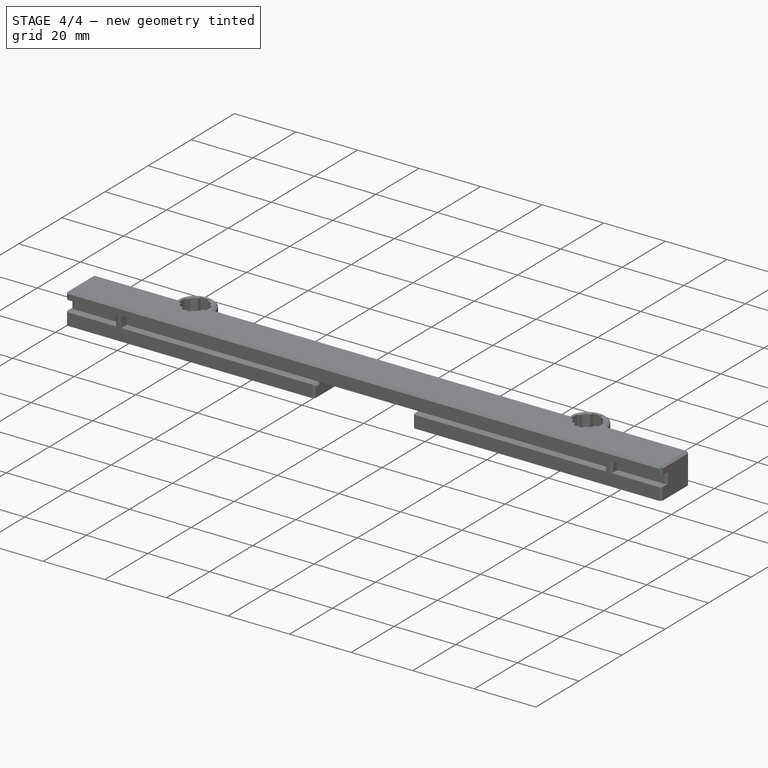
[diagram: stage 4 of 4 — iso view after this stage's code; geometry added in this stage tinted green]
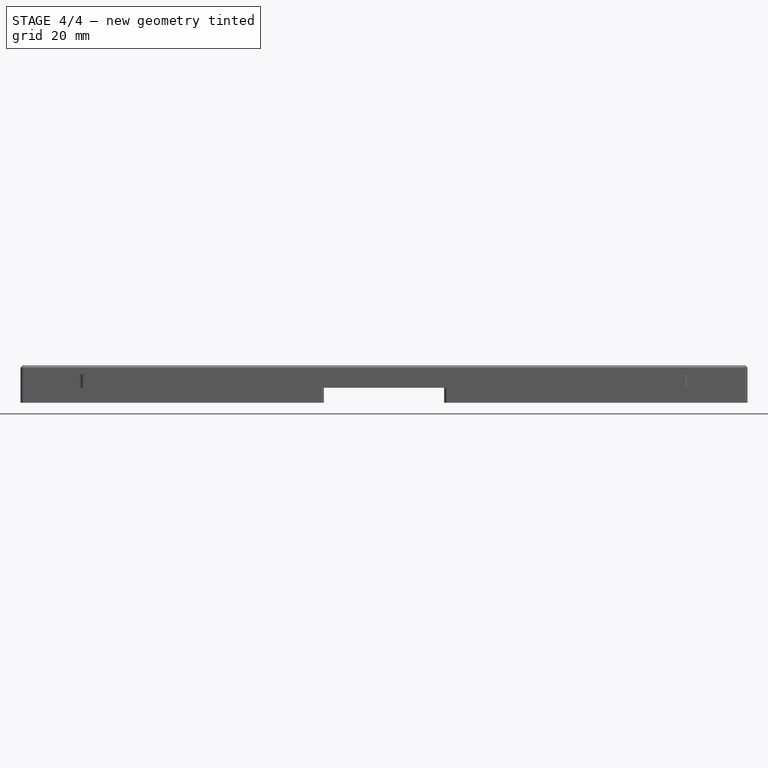
[diagram: stage 4 of 4 — front view after this stage's code; geometry added in this stage tinted green]
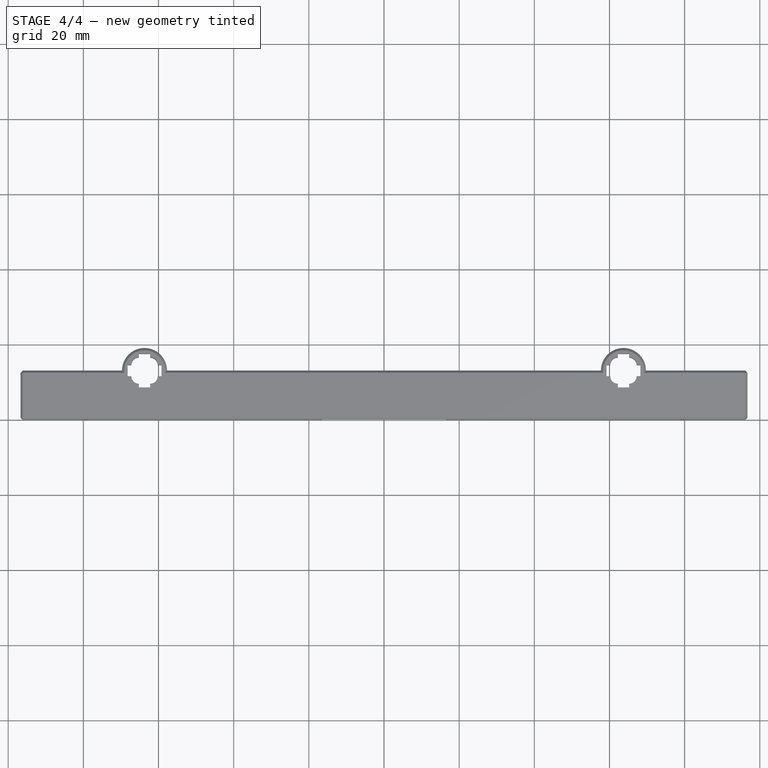
[diagram: stage 4 of 4 — top view after this stage's code; geometry added in this stage tinted green]
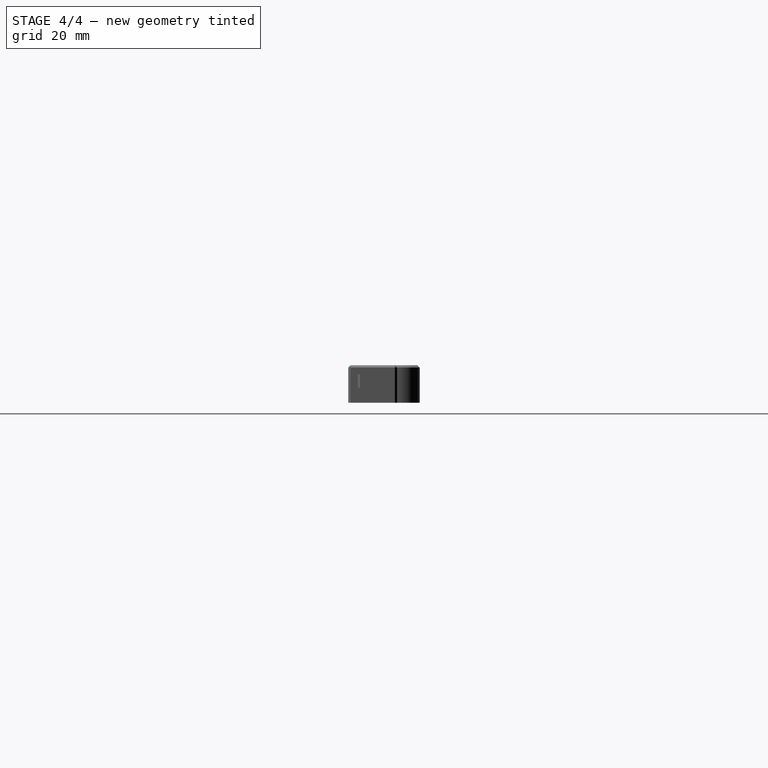
[diagram: stage 4 of 4 — right view after this stage's code; geometry added in this stage tinted green]
FEATURE [PartDesign::Pocket] Pocket001  label="RoundHoleL"
  BaseFeature = -> Pad001
  Direction = (0,0,-1)
  Length = 2
  Length2 = 5
  Profile = -> Clone2D001
  ReferenceAxis = -> Clone2D001 [N_Axis]
  Refine = true
  Reversed = true
  Suppressed = false
  Type = 0
FEATURE [Part::Part2DObjectPython] Clone2D  label="KeyedHoleLSketch"  # Draft 2D object (typed FeaturePython)
  Fuse = false
  Objects = -> [Sketch017]
  Scale = (1,1,1)
FEATURE [PartDesign::Pocket] Pocket002  label="KeyedHoleL"
  BaseFeature = -> Pocket001
  Direction = (0,0,-1)
  Length = 5
  Length2 = 5
  Profile = -> Clone2D
  ReferenceAxis = -> Clone2D [N_Axis]
  Refine = true
  Reversed = true
  Suppressed = false
  Type = 1
FEATURE [Sketcher::SketchObject] Sketch025  label="WirePassageLSketch"
  ArcFitTolerance = 1e-06
  AttachmentSupport = -> [XY_Plane]
  ExternalGeometry = -> [Clone2D002]
  FullyConstrained = true
  MakeInternals = false
  MapMode = 5
  sketch-geometry (6):
    g0: LineSegment StartX=-16 StartY=13 StartZ=0 EndX=-16 EndY=0 EndZ=0
    g1: LineSegment StartX=-16 StartY=0 StartZ=0 EndX=16 EndY=0 EndZ=0
    g2: LineSegment StartX=16 StartY=0 StartZ=0 EndX=16 EndY=13 EndZ=0
    g3: LineSegment StartX=16 StartY=13 StartZ=0 EndX=-16 EndY=13 EndZ=0
    g4: LineSegment [constr] StartX=-57.7159 StartY=13 StartZ=0 EndX=-16 EndY=13 EndZ=0
    g5: LineSegment [constr] StartX=16 StartY=13 StartZ=0 EndX=57.7159 EndY=13 EndZ=0
  constraints (16):
    c: Coincident(g0,g1)
    c: Coincident(g1,g2)
    c: Coincident(g2,g3)
    c: Coincident(g3,g0)
    c: Vertical(g0)
    c: Vertical(g2)
    c: Horizontal(g1)
    c: Horizontal(g3)
    c: DistanceX(g3,g3) = 32
    c: Coincident(g4,g-3)
    c: Coincident(g4,g0)
    c: Coincident(g5,g2)
    c: Coincident(g5,g-3)
    c: Equal(g4,g5)
    c: Horizontal(g0,g-4)
    c: Horizontal(g0,g4)
FEATURE [PartDesign::Pocket] Pocket006  label="WirePassageLPocket"
  BaseFeature = -> Pocket002
  Direction = (0,0,-1)
  Length = 4
  Length2 = 5
  Profile = -> Sketch025
  ReferenceAxis = -> Sketch025 [N_Axis]
  Refine = true
  Reversed = true
  Suppressed = false
  Type = 0
FEATURE [PartDesign::Chamfer] Chamfer  label="ChamferL"
  Angle = 45
  Base = -> Pocket006 [Edge10,Edge9,Edge11,Edge14,Edge4,Edge20,Edge22,Edge82,Edge23,Edge21,Edge56,Edge60,Edge5,Edge19,Edge7,Edge78,Edge58,Edge66,Edge61,Edge68]
  BaseFeature = -> Pocket006
  ChamferType = 0
  FlipDirection = false
  Refine = true
  Size = 0.6
  Size2 = 1
  SupportTransform = false
  Suppressed = false
  UseAllEdges = false
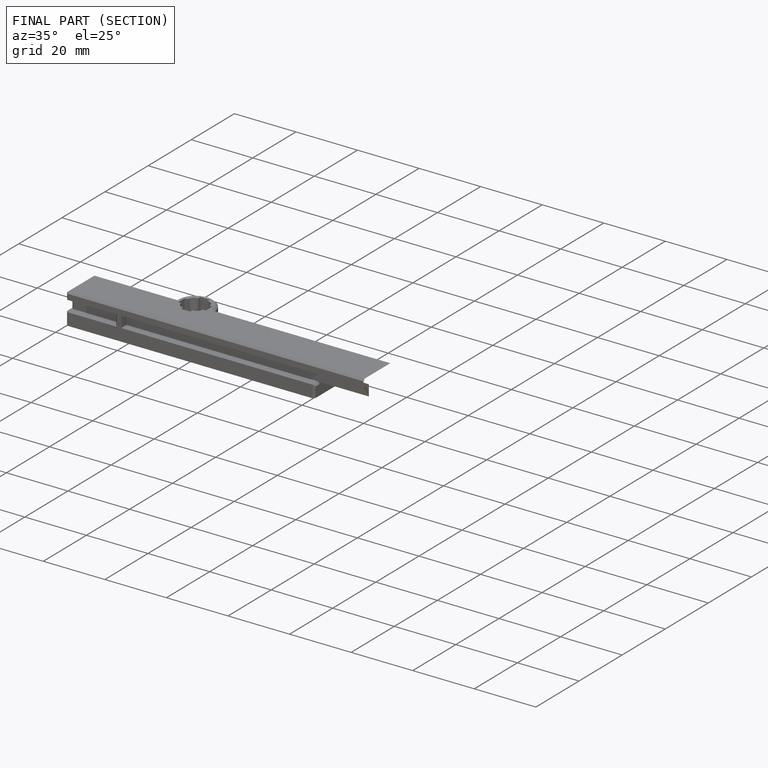
[diagram: finished part — half-section view (interior)]
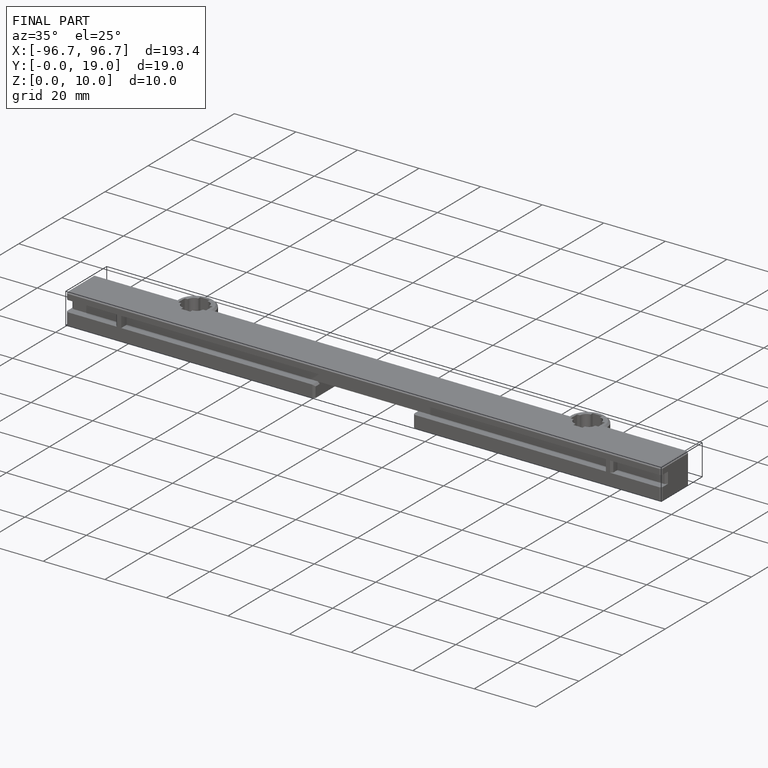
[diagram: finished part — iso view with bounding-box wireframe]
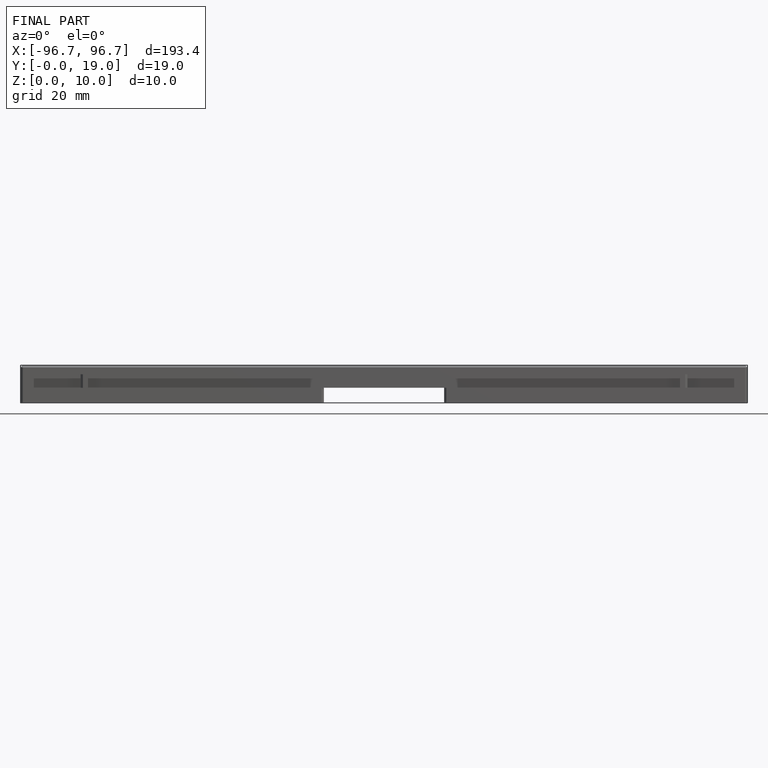
[diagram: finished part — front view with bounding-box wireframe]
